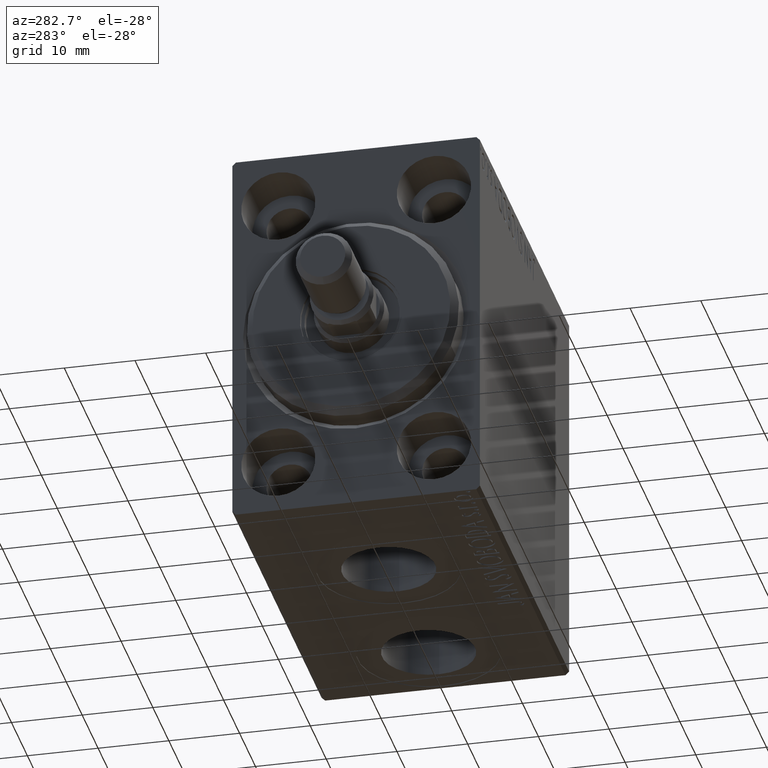
[diagram: clean part render]
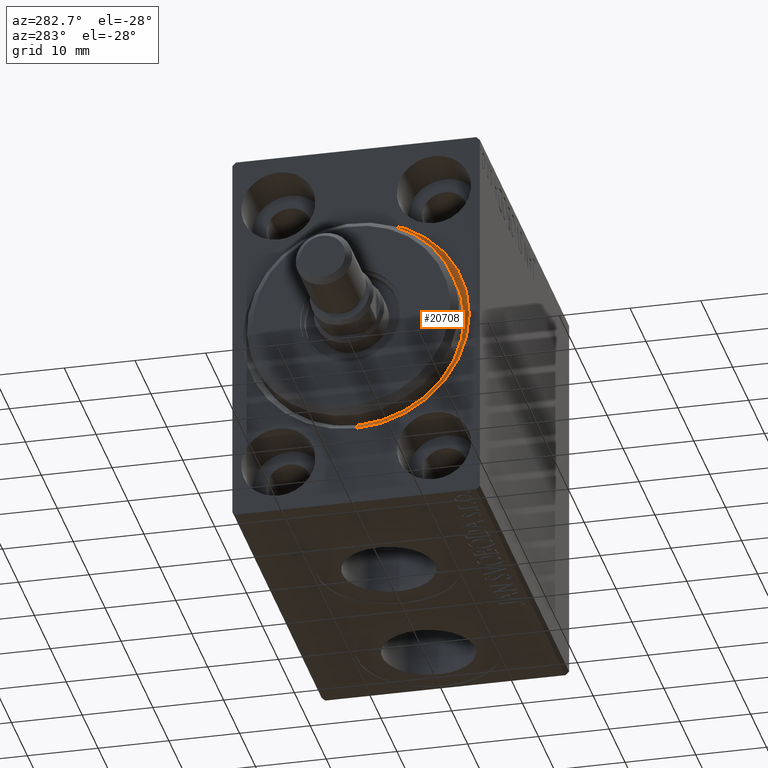
[diagram: same view with one face highlighted and labeled with its STEP entity id]
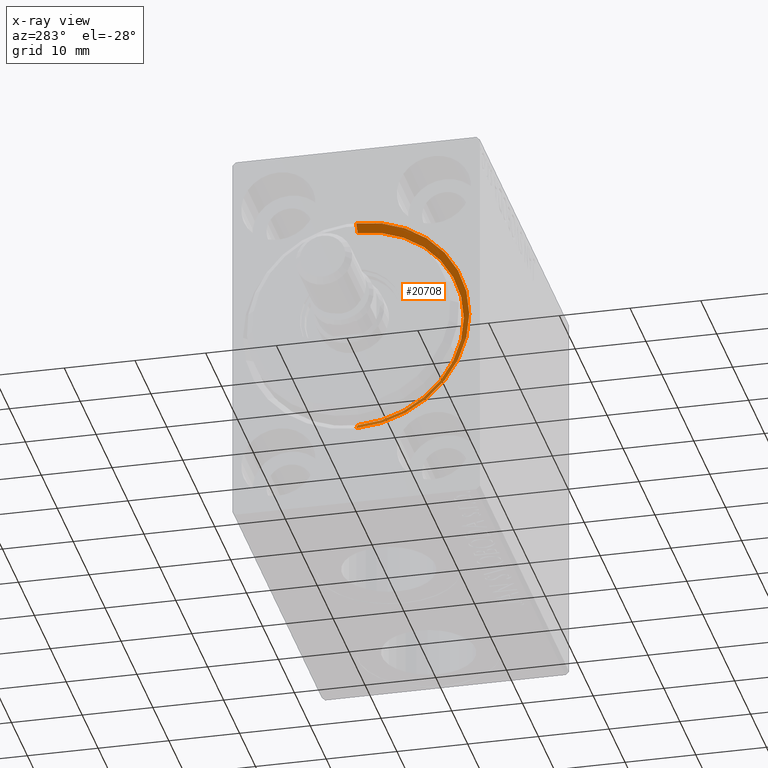
[diagram: x-ray of the same camera — body ghosted, the highlighted face saturated]
A machine part, auxiliary view. The second image highlights one B-rep face of the part: STEP entity #20708.
The next image is the same camera in x-ray: the body ghosted, the highlighted face saturated — about 0% of this face is hidden behind the body in this view.
In plain terms, the highlighted conical surface has half-angle 45 deg.
Its self-contained STEP definition (entity closure, byte-faithful):
#925 = DIRECTION ( 'NONE',  ( -0.7071067811865469066, 0.000000000000000000, 0.7071067811865481278 ) ) ;
#2428 = EDGE_CURVE ( 'NONE', #13096, #14252, #16275, .T. ) ;
#2601 = ORIENTED_EDGE ( 'NONE', *, *, #2428, .F. ) ;
#5812 = CARTESIAN_POINT ( 'NONE',  ( 1.000000000000013101, 0.000000000000000000, 0.000000000000000000 ) ) ;
#6506 = CARTESIAN_POINT ( 'NONE',  ( 1.000000000000013101, 1.836970198721029589E-15, -15.00000000000000000 ) ) ;
#6888 = AXIS2_PLACEMENT_3D ( 'NONE', #32701, #12005, #16045 ) ;
#8352 = ORIENTED_EDGE ( 'NONE', *, *, #26117, .F. ) ;
#8746 = DIRECTION ( 'NONE',  ( -1.000000000000000000, 0.000000000000000000, 0.000000000000000000 ) ) ;
#12005 = DIRECTION ( 'NONE',  ( -1.000000000000000000, 0.000000000000000000, 0.000000000000000000 ) ) ;
#13096 = VERTEX_POINT ( 'NONE', #6506 ) ;
#14252 = VERTEX_POINT ( 'NONE', #16770 ) ;
#16045 = DIRECTION ( 'NONE',  ( 0.000000000000000000, 0.000000000000000000, 1.000000000000000000 ) ) ;
#16275 = CIRCLE ( 'NONE', #35675, 15.00000000000000000 ) ;
#16366 = VERTEX_POINT ( 'NONE', #33547 ) ;
#16542 = EDGE_CURVE ( 'NONE', #13096, #16366, #24734, .T. ) ;
#16770 = CARTESIAN_POINT ( 'NONE',  ( 1.000000000000013101, 0.000000000000000000, 15.00000000000000000 ) ) ;
#17790 = VERTEX_POINT ( 'NONE', #36383 ) ;
#19875 = DIRECTION ( 'NONE',  ( 0.000000000000000000, 0.000000000000000000, -1.000000000000000000 ) ) ;
#20708 = ADVANCED_FACE ( 'NONE', ( #22116 ), #32775, .F. ) ;
#22116 = FACE_OUTER_BOUND ( 'NONE', #40091, .T. ) ;
#23538 = VECTOR ( 'NONE', #925, 1000.000000000000114 ) ;
#24734 = LINE ( 'NONE', #38462, #28308 ) ;
#26117 = EDGE_CURVE ( 'NONE', #14252, #17790, #28852, .T. ) ;
#26419 = DIRECTION ( 'NONE',  ( 1.000000000000000000, 0.000000000000000000, 0.000000000000000000 ) ) ;
#28308 = VECTOR ( 'NONE', #42054, 1000.000000000000114 ) ;
#28852 = LINE ( 'NONE', #34714, #23538 ) ;
#32701 = CARTESIAN_POINT ( 'NONE',  ( 1.000000000000013101, 0.000000000000000000, 0.000000000000000000 ) ) ;
#32775 = CONICAL_SURFACE ( 'NONE', #6888, 15.00000000000000000, 0.7853981633974491672 ) ;
#33125 = CIRCLE ( 'NONE', #37420, 16.00000000000001421 ) ;
#33547 = CARTESIAN_POINT ( 'NONE',  ( 0.000000000000000000, 1.959434878635766709E-15, -16.00000000000001421 ) ) ;
#33833 = CARTESIAN_POINT ( 'NONE',  ( 0.000000000000000000, 0.000000000000000000, 0.000000000000000000 ) ) ;
#34714 = CARTESIAN_POINT ( 'NONE',  ( 1.000000000000013101, 0.000000000000000000, 15.00000000000000000 ) ) ;
#35675 = AXIS2_PLACEMENT_3D ( 'NONE', #5812, #8746, #37071 ) ;
#36383 = CARTESIAN_POINT ( 'NONE',  ( 0.000000000000000000, 0.000000000000000000, 16.00000000000001421 ) ) ;
#37071 = DIRECTION ( 'NONE',  ( 0.000000000000000000, 0.000000000000000000, -1.000000000000000000 ) ) ;
#37420 = AXIS2_PLACEMENT_3D ( 'NONE', #33833, #26419, #19875 ) ;
#38462 = CARTESIAN_POINT ( 'NONE',  ( 1.000000000000013101, 1.836970198721029589E-15, -15.00000000000000000 ) ) ;
#38750 = EDGE_CURVE ( 'NONE', #17790, #16366, #33125, .T. ) ;
#39037 = ORIENTED_EDGE ( 'NONE', *, *, #16542, .T. ) ;
#40091 = EDGE_LOOP ( 'NONE', ( #2601, #39037, #40488, #8352 ) ) ;
#40488 = ORIENTED_EDGE ( 'NONE', *, *, #38750, .F. ) ;
#42054 = DIRECTION ( 'NONE',  ( -0.7071067811865469066, 8.659560562354940254E-17, -0.7071067811865481278 ) ) ;